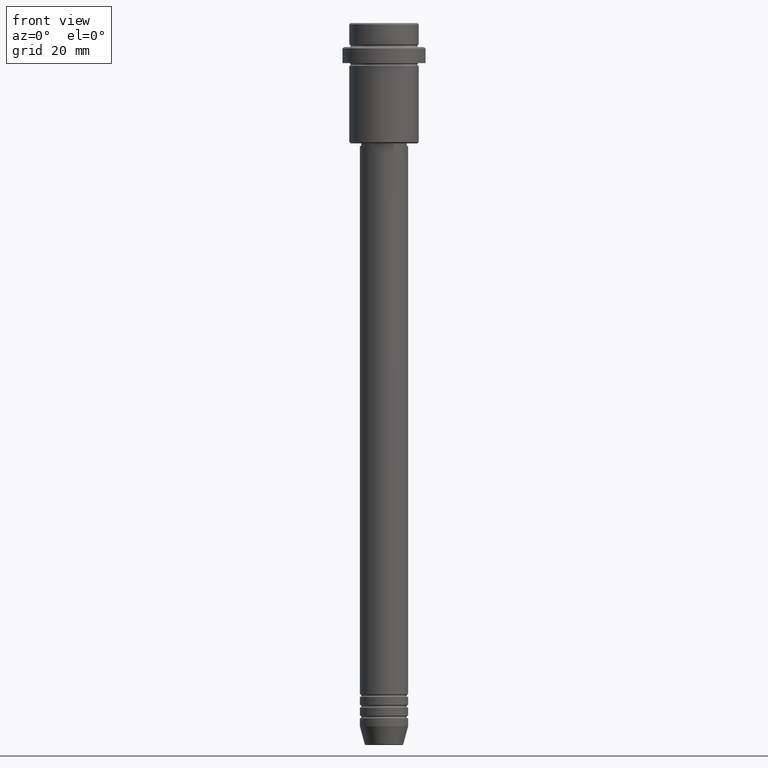
[diagram: clean part render]
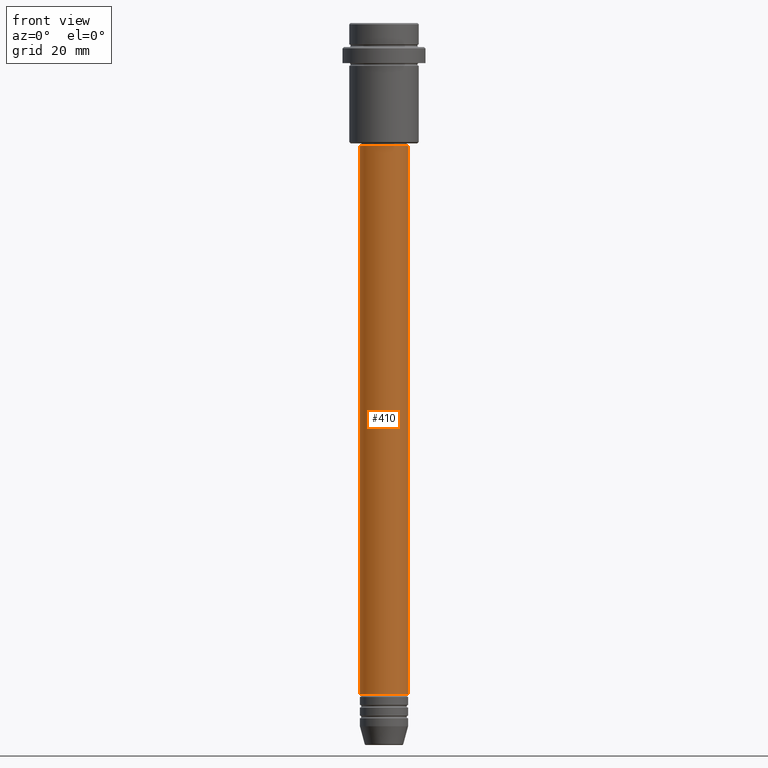
[diagram: same view with one face highlighted and labeled with its STEP entity id]
A machine part, front view. The second image highlights one B-rep face of the part: STEP entity #410.
In plain terms, the highlighted cylindrical surface (edge-blend (fillet) strip) has radius 9 mm, axis along (-0, -0, 1).
Its self-contained STEP definition (entity closure, byte-faithful):
#67 = VERTEX_POINT ( 'NONE', #72 ) ;
#72 = CARTESIAN_POINT ( 'NONE',  ( -9.000000000000000000, 1.102182119232617714E-15, -250.9999999999998863 ) ) ;
#94 = VERTEX_POINT ( 'NONE', #773 ) ;
#102 = EDGE_CURVE ( 'NONE', #774, #94, #1181, .T. ) ;
#120 = VECTOR ( 'NONE', #1379, 1000.000000000000000 ) ;
#132 = CARTESIAN_POINT ( 'NONE',  ( -9.000000000000001776, 1.102182119232617911E-15, -46.00000000000001421 ) ) ;
#177 = EDGE_LOOP ( 'NONE', ( #608, #219, #1241, #281 ) ) ;
#219 = ORIENTED_EDGE ( 'NONE', *, *, #876, .T. ) ;
#253 = CYLINDRICAL_SURFACE ( 'NONE', #366, 9.000000000000001776 ) ;
#258 = EDGE_CURVE ( 'NONE', #842, #94, #469, .T. ) ;
#281 = ORIENTED_EDGE ( 'NONE', *, *, #102, .F. ) ;
#355 = CARTESIAN_POINT ( 'NONE',  ( 9.000000000000000000, 0.000000000000000000, -250.9999999999998863 ) ) ;
#366 = AXIS2_PLACEMENT_3D ( 'NONE', #560, #1142, #894 ) ;
#410 = ADVANCED_FACE ( 'NONE', ( #797 ), #253, .T. ) ;
#469 = LINE ( 'NONE', #1001, #1203 ) ;
#491 = CARTESIAN_POINT ( 'NONE',  ( -9.000000000000001776, 1.102182119232617911E-15, 0.000000000000000000 ) ) ;
#560 = CARTESIAN_POINT ( 'NONE',  ( 0.000000000000000000, 0.000000000000000000, 0.000000000000000000 ) ) ;
#608 = ORIENTED_EDGE ( 'NONE', *, *, #1289, .F. ) ;
#644 = AXIS2_PLACEMENT_3D ( 'NONE', #838, #1356, #1146 ) ;
#670 = CIRCLE ( 'NONE', #644, 9.000000000000000000 ) ;
#684 = DIRECTION ( 'NONE',  ( -0.000000000000000000, -0.000000000000000000, 1.000000000000000000 ) ) ;
#723 = LINE ( 'NONE', #491, #120 ) ;
#747 = CARTESIAN_POINT ( 'NONE',  ( 0.000000000000000000, 0.000000000000000000, -46.00000000000001421 ) ) ;
#763 = DIRECTION ( 'NONE',  ( 1.000000000000000000, 0.000000000000000000, 0.000000000000000000 ) ) ;
#773 = CARTESIAN_POINT ( 'NONE',  ( 9.000000000000001776, 0.000000000000000000, -46.00000000000001421 ) ) ;
#774 = VERTEX_POINT ( 'NONE', #132 ) ;
#797 = FACE_OUTER_BOUND ( 'NONE', #177, .T. ) ;
#838 = CARTESIAN_POINT ( 'NONE',  ( 0.000000000000000000, 0.000000000000000000, -250.9999999999998863 ) ) ;
#842 = VERTEX_POINT ( 'NONE', #355 ) ;
#876 = EDGE_CURVE ( 'NONE', #67, #842, #670, .T. ) ;
#894 = DIRECTION ( 'NONE',  ( 1.000000000000000000, 0.000000000000000000, 0.000000000000000000 ) ) ;
#963 = DIRECTION ( 'NONE',  ( -0.000000000000000000, -0.000000000000000000, 1.000000000000000000 ) ) ;
#1001 = CARTESIAN_POINT ( 'NONE',  ( 9.000000000000001776, 0.000000000000000000, 0.000000000000000000 ) ) ;
#1142 = DIRECTION ( 'NONE',  ( -0.000000000000000000, -0.000000000000000000, 1.000000000000000000 ) ) ;
#1146 = DIRECTION ( 'NONE',  ( 1.000000000000000000, 0.000000000000000000, 0.000000000000000000 ) ) ;
#1181 = CIRCLE ( 'NONE', #1404, 9.000000000000001776 ) ;
#1203 = VECTOR ( 'NONE', #684, 1000.000000000000000 ) ;
#1241 = ORIENTED_EDGE ( 'NONE', *, *, #258, .T. ) ;
#1289 = EDGE_CURVE ( 'NONE', #67, #774, #723, .T. ) ;
#1356 = DIRECTION ( 'NONE',  ( -0.000000000000000000, -0.000000000000000000, 1.000000000000000000 ) ) ;
#1379 = DIRECTION ( 'NONE',  ( -0.000000000000000000, -0.000000000000000000, 1.000000000000000000 ) ) ;
#1404 = AXIS2_PLACEMENT_3D ( 'NONE', #747, #963, #763 ) ;